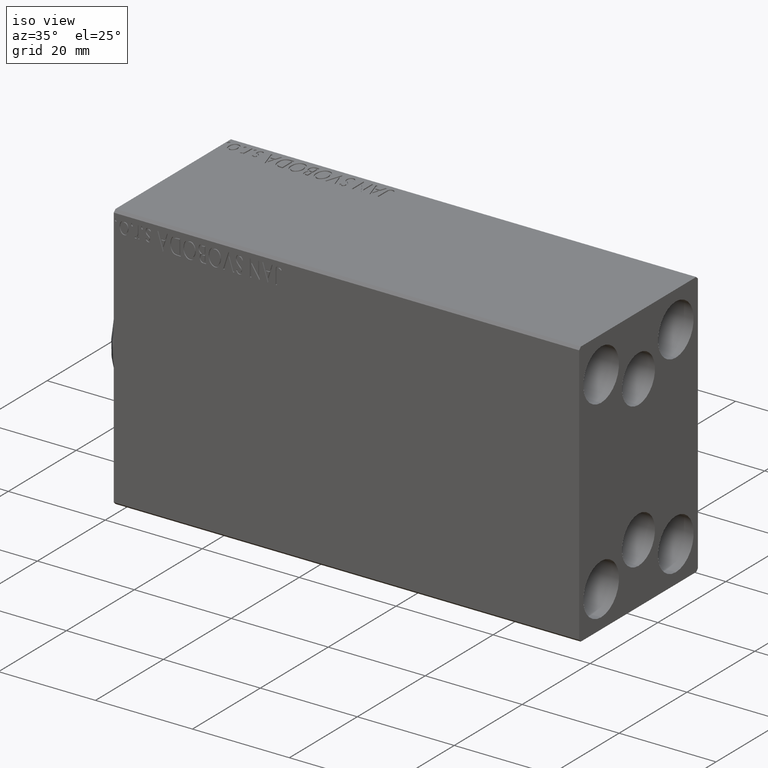
[diagram: clean part render]
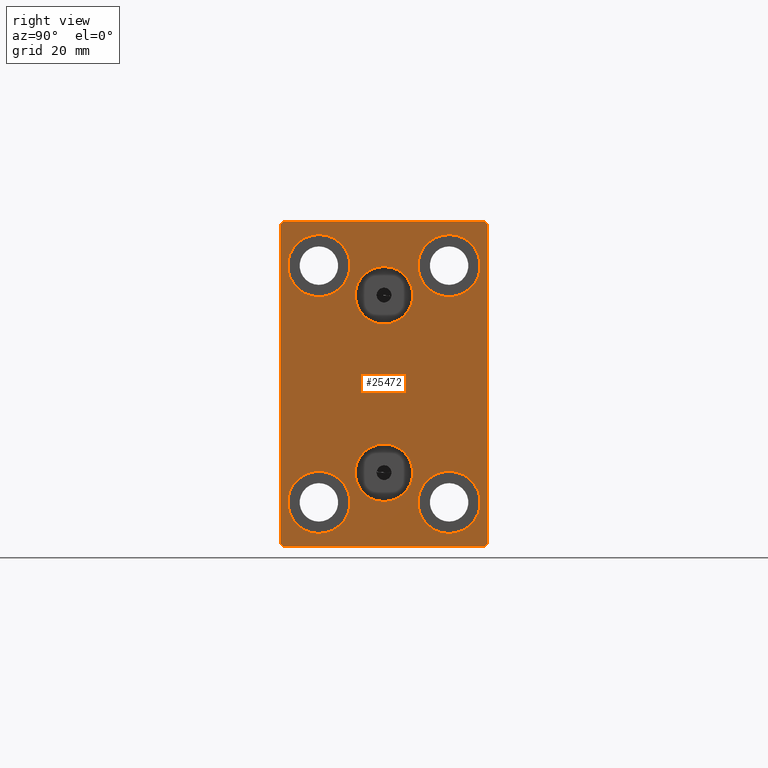
[diagram: tour spotlight — one face highlighted and labeled with its STEP entity id]
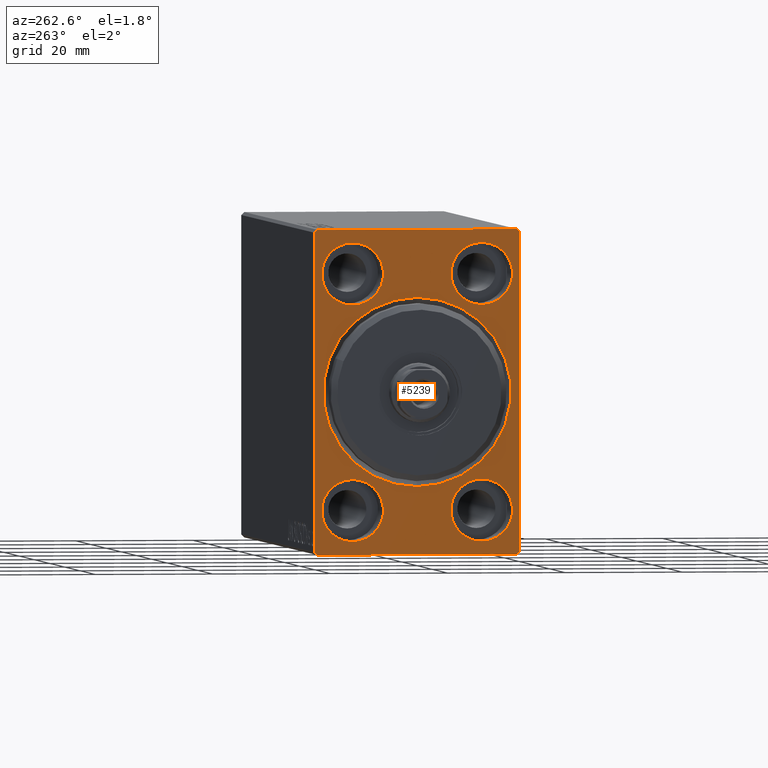
[diagram: tour spotlight — one face highlighted and labeled with its STEP entity id]
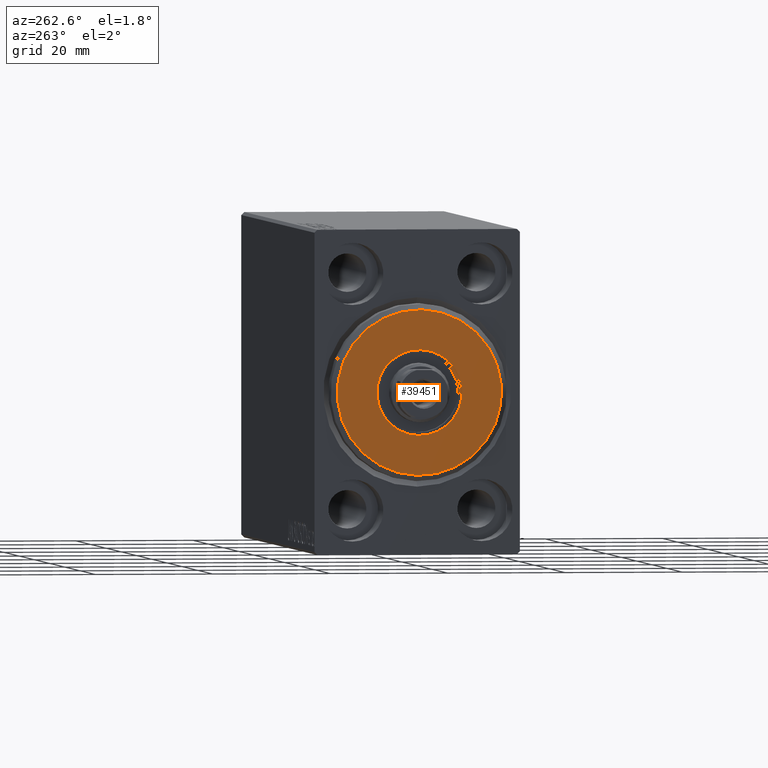
[diagram: tour spotlight — one face highlighted and labeled with its STEP entity id]
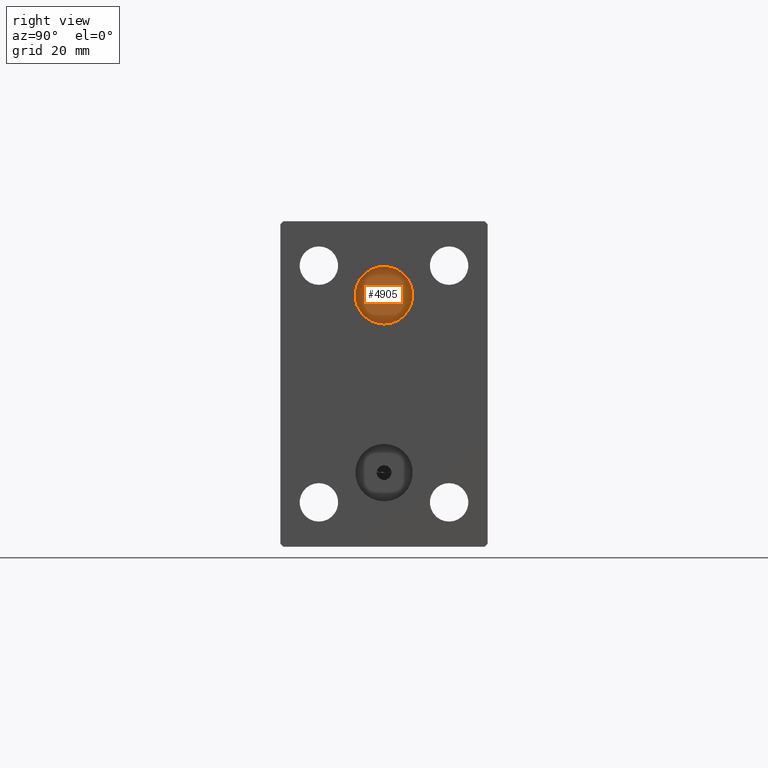
[diagram: tour spotlight — one face highlighted and labeled with its STEP entity id]
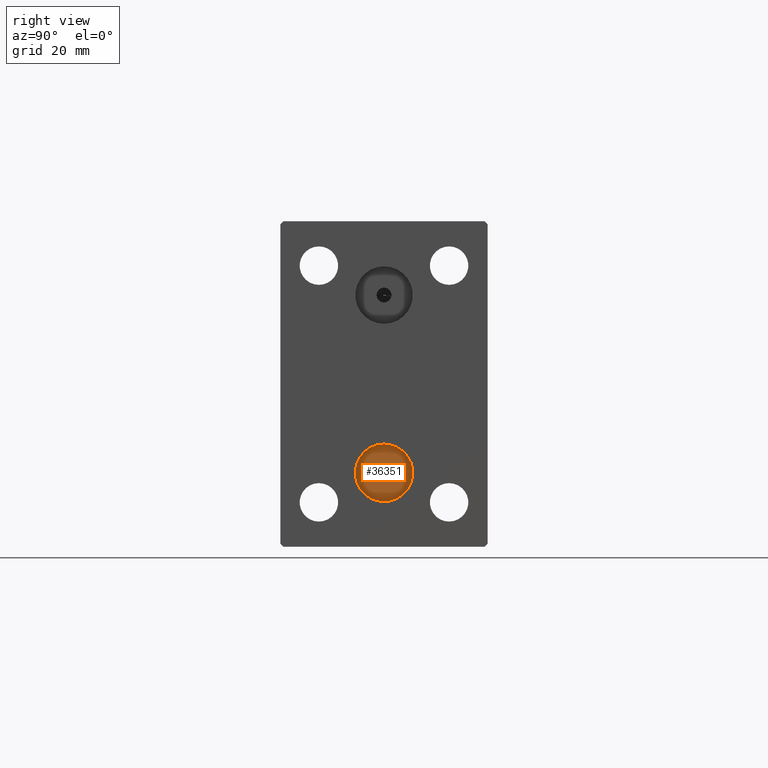
[diagram: tour spotlight — one face highlighted and labeled with its STEP entity id]
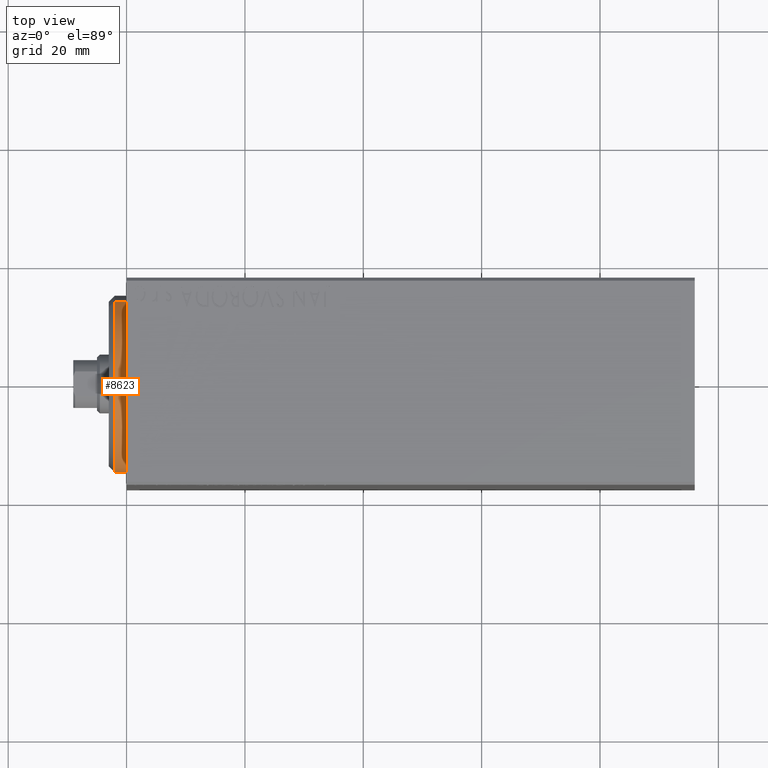
[diagram: tour spotlight — one face highlighted and labeled with its STEP entity id]
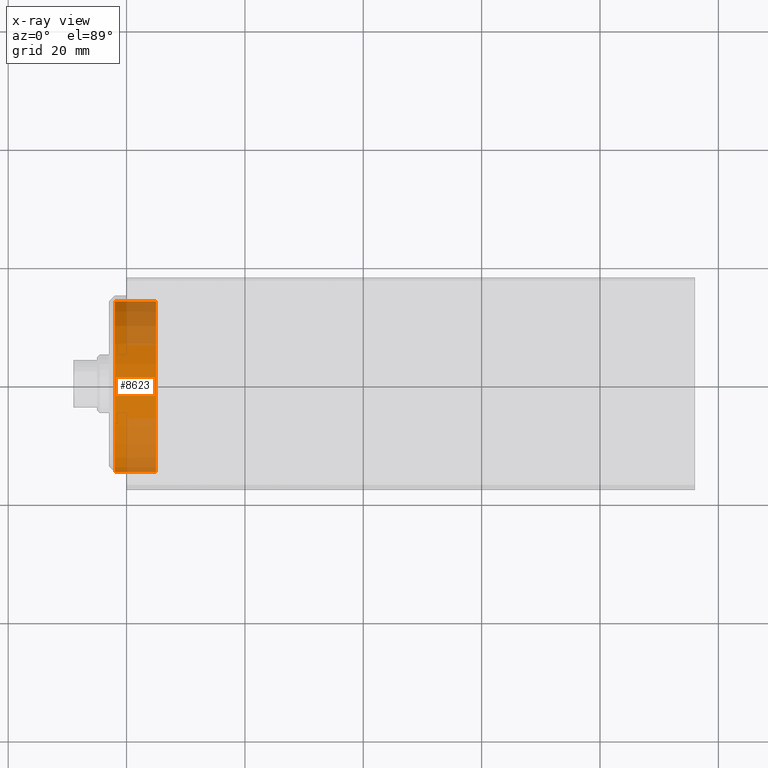
[diagram: x-ray of the same camera — body ghosted, this tour face saturated]
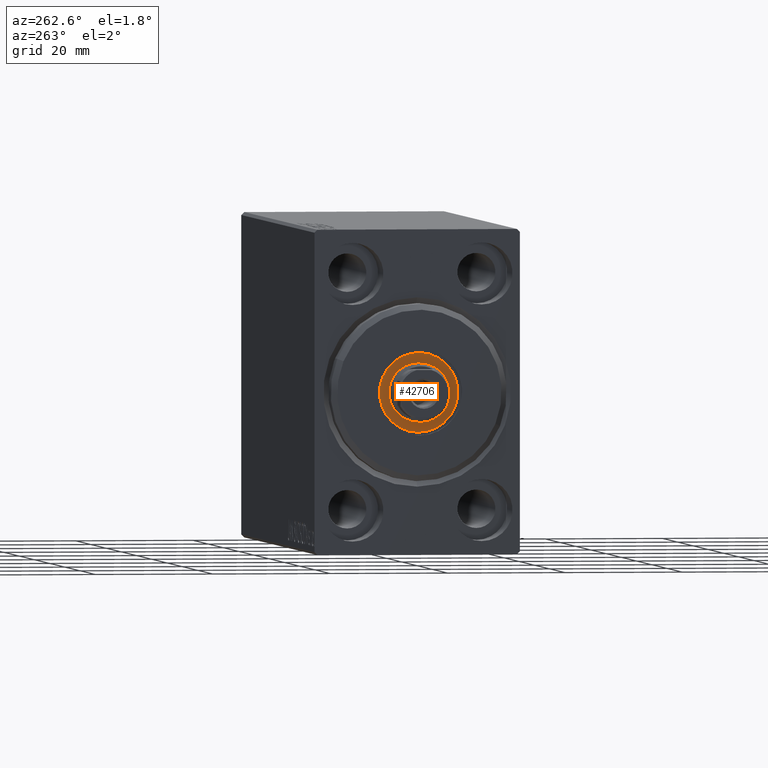
[diagram: tour spotlight — one face highlighted and labeled with its STEP entity id]
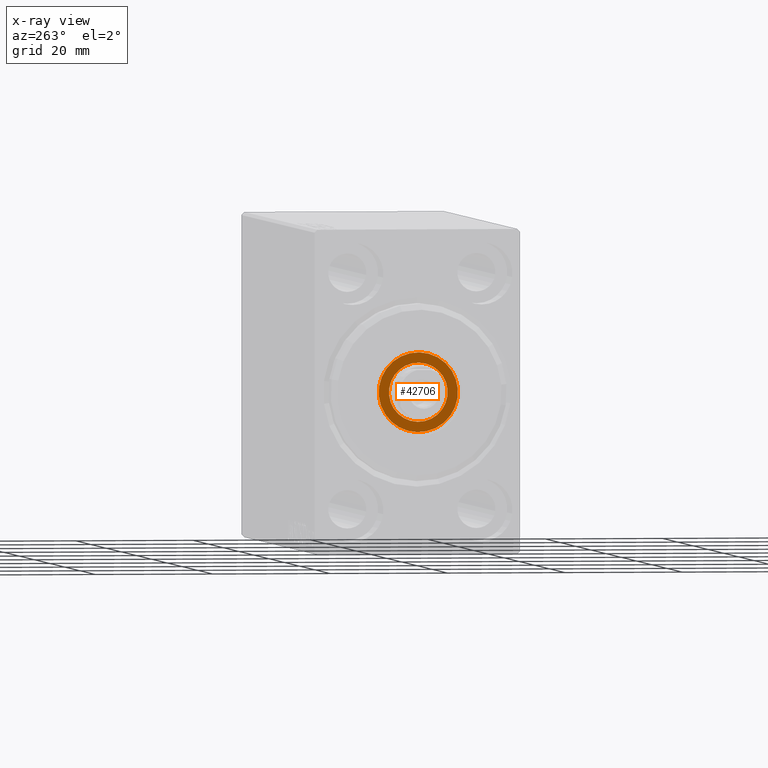
[diagram: x-ray of the same camera — body ghosted, this tour face saturated]
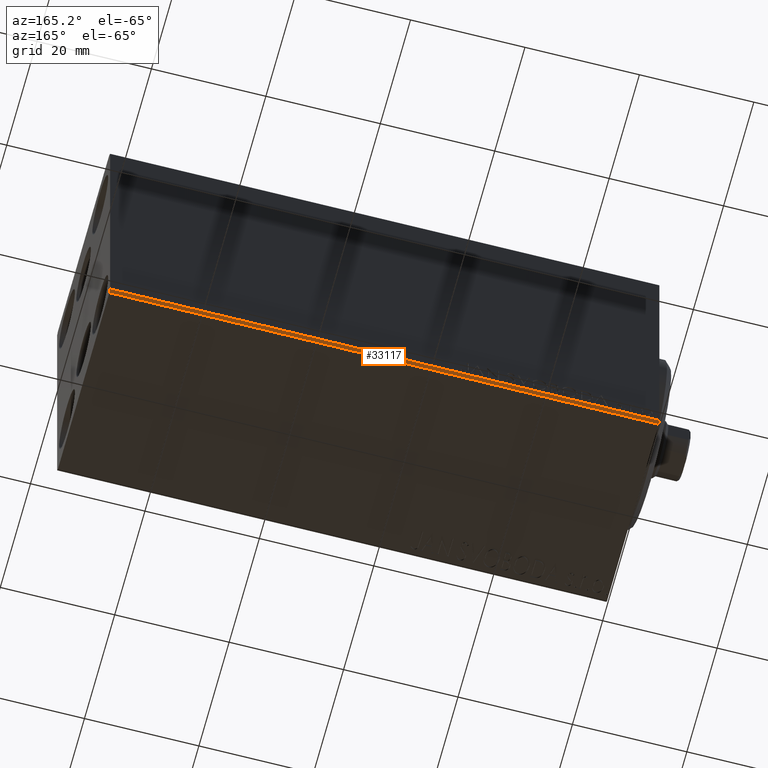
[diagram: tour spotlight — one face highlighted and labeled with its STEP entity id]
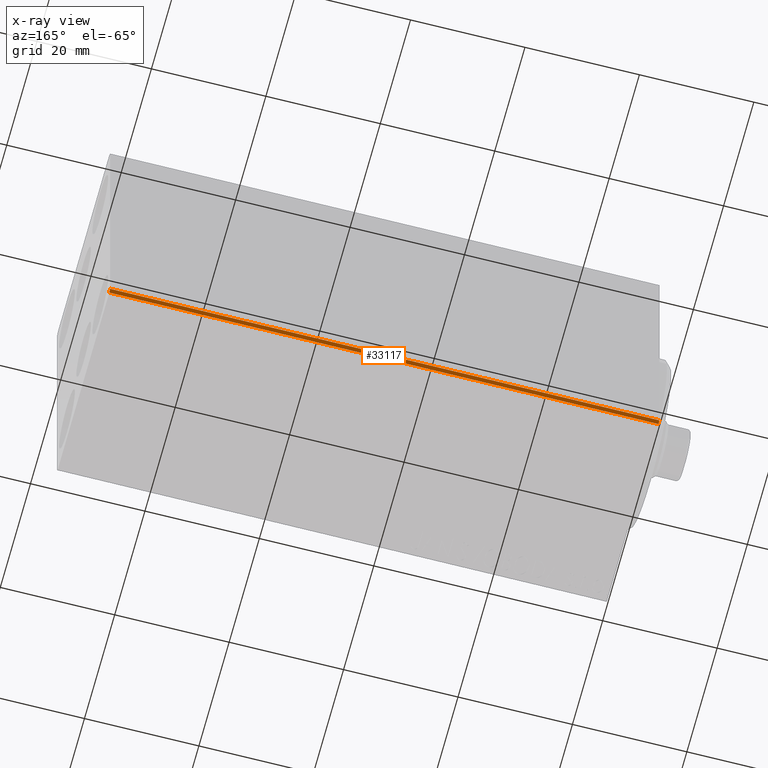
[diagram: x-ray of the same camera — body ghosted, this tour face saturated]
A machine part: a face-by-face anatomy tour. The part has 861 B-rep faces; the first image is the clean iso view, then the 8 largest visible faces are spotlighted one at a time (largest first), each with its STEP entity span.

Face 1 — right view, entity #25472. In plain terms, the highlighted planar face has unit normal (1, 0, 0).
Definition (entity closure, byte-faithful):
#84 = CARTESIAN_POINT ( 'NONE',  ( 96.00000000000000000, -22.24999999999999645, 22.24999999999999645 ) ) ;
#402 = ORIENTED_EDGE ( 'NONE', *, *, #10501, .T. ) ;
#709 = ORIENTED_EDGE ( 'NONE', *, *, #6322, .T. ) ;
#875 = CIRCLE ( 'NONE', #5853, 5.250000000000000888 ) ;
#1411 = CARTESIAN_POINT ( 'NONE',  ( 96.00000000000000000, -17.50000000000000000, -27.50000000000000355 ) ) ;
#1665 = FACE_BOUND ( 'NONE', #24070, .T. ) ;
#2020 = VERTEX_POINT ( 'NONE', #29053 ) ;
#2092 = DIRECTION ( 'NONE',  ( -1.000000000000000000, -0.000000000000000000, -0.000000000000000000 ) ) ;
#2236 = CIRCLE ( 'NONE', #13555, 5.250000000000000888 ) ;
#2254 = CARTESIAN_POINT ( 'NONE',  ( 96.00000000000000000, -11.00000000000000355, 14.75000000000000000 ) ) ;
#2274 = AXIS2_PLACEMENT_3D ( 'NONE', #15189, #39178, #35616 ) ;
#2281 = VECTOR ( 'NONE', #37781, 1000.000000000000000 ) ;
#2365 = CIRCLE ( 'NONE', #3781, 5.250000000000000888 ) ;
#2887 = EDGE_LOOP ( 'NONE', ( #25003, #33401 ) ) ;
#3184 = DIRECTION ( 'NONE',  ( -1.000000000000000000, -0.000000000000000000, -0.000000000000000000 ) ) ;
#3267 = AXIS2_PLACEMENT_3D ( 'NONE', #9071, #38821, #25477 ) ;
#3392 = CARTESIAN_POINT ( 'NONE',  ( 96.00000000000000000, -11.00000000000000355, -20.00000000000000000 ) ) ;
#3693 = CARTESIAN_POINT ( 'NONE',  ( 96.00000000000000000, 11.00000000000000355, 20.00000000000000000 ) ) ;
#3727 = ORIENTED_EDGE ( 'NONE', *, *, #15320, .T. ) ;
#3781 = AXIS2_PLACEMENT_3D ( 'NONE', #32740, #9204, #40495 ) ;
#3829 = EDGE_LOOP ( 'NONE', ( #402, #6989 ) ) ;
#4480 = EDGE_CURVE ( 'NONE', #2020, #28873, #30587, .T. ) ;
#4515 = AXIS2_PLACEMENT_3D ( 'NONE', #30095, #10115, #23014 ) ;
#4530 = DIRECTION ( 'NONE',  ( 0.000000000000000000, 1.000000000000000000, 0.000000000000000000 ) ) ;
#4576 = CIRCLE ( 'NONE', #35049, 4.859999999999999432 ) ;
#4580 = CARTESIAN_POINT ( 'NONE',  ( 96.00000000000000000, -1.836970198721029589E-15, 10.14000000000000057 ) ) ;
#4658 = VERTEX_POINT ( 'NONE', #6428 ) ;
#4995 = FACE_BOUND ( 'NONE', #42869, .T. ) ;
#5586 = EDGE_CURVE ( 'NONE', #28874, #34403, #34888, .T. ) ;
#5636 = LINE ( 'NONE', #19818, #18584 ) ;
#5853 = AXIS2_PLACEMENT_3D ( 'NONE', #36718, #6313, #36936 ) ;
#6313 = DIRECTION ( 'NONE',  ( -1.000000000000000000, -0.000000000000000000, -0.000000000000000000 ) ) ;
#6322 = EDGE_CURVE ( 'NONE', #26762, #40962, #13621, .T. ) ;
#6428 = CARTESIAN_POINT ( 'NONE',  ( 96.00000000000000000, -1.241791854335416311E-15, 19.85999999999999943 ) ) ;
#6592 = ORIENTED_EDGE ( 'NONE', *, *, #26366, .T. ) ;
#6697 = CARTESIAN_POINT ( 'NONE',  ( 96.00000000000000000, -1.734723475976807094E-15, -15.00000000000000000 ) ) ;
#6759 = DIRECTION ( 'NONE',  ( 0.000000000000000000, 0.000000000000000000, 1.000000000000000000 ) ) ;
#6989 = ORIENTED_EDGE ( 'NONE', *, *, #29640, .T. ) ;
#7288 = ORIENTED_EDGE ( 'NONE', *, *, #25210, .T. ) ;
#8936 = CARTESIAN_POINT ( 'NONE',  ( 96.00000000000000000, -1.734723475976807094E-15, -19.85999999999999943 ) ) ;
#9071 = CARTESIAN_POINT ( 'NONE',  ( 96.00000000000000000, -1.836970198721029589E-15, 15.00000000000000000 ) ) ;
#9136 = ORIENTED_EDGE ( 'NONE', *, *, #26611, .T. ) ;
#9204 = DIRECTION ( 'NONE',  ( -1.000000000000000000, -0.000000000000000000, -0.000000000000000000 ) ) ;
#9215 = ORIENTED_EDGE ( 'NONE', *, *, #25128, .T. ) ;
#9296 = ORIENTED_EDGE ( 'NONE', *, *, #24741, .T. ) ;
#9562 = DIRECTION ( 'NONE',  ( 0.000000000000000000, 0.000000000000000000, 1.000000000000000000 ) ) ;
#9646 = CIRCLE ( 'NONE', #3267, 4.859999999999999432 ) ;
#10115 = DIRECTION ( 'NONE',  ( -1.000000000000000000, -0.000000000000000000, -0.000000000000000000 ) ) ;
#10501 = EDGE_CURVE ( 'NONE', #36475, #29584, #23272, .T. ) ;
#10782 = VECTOR ( 'NONE', #34564, 1000.000000000000114 ) ;
#10894 = CARTESIAN_POINT ( 'NONE',  ( 96.00000000000000000, 11.00000000000000355, -14.75000000000000000 ) ) ;
#10907 = VERTEX_POINT ( 'NONE', #21377 ) ;
#11077 = CARTESIAN_POINT ( 'NONE',  ( 96.00000000000000000, -17.50000000000000000, -27.00000000000000355 ) ) ;
#11853 = PLANE ( 'NONE',  #2274 ) ;
#12753 = LINE ( 'NONE', #40284, #26334 ) ;
#12848 = AXIS2_PLACEMENT_3D ( 'NONE', #6697, #27090, #20879 ) ;
#13249 = EDGE_CURVE ( 'NONE', #23604, #4658, #23333, .T. ) ;
#13294 = DIRECTION ( 'NONE',  ( 0.000000000000000000, -1.261617073437677752E-16, 1.000000000000000000 ) ) ;
#13397 = VERTEX_POINT ( 'NONE', #39090 ) ;
#13555 = AXIS2_PLACEMENT_3D ( 'NONE', #23615, #37166, #6759 ) ;
#13621 = CIRCLE ( 'NONE', #29224, 5.250000000000000888 ) ;
#13736 = ORIENTED_EDGE ( 'NONE', *, *, #26660, .T. ) ;
#13915 = ORIENTED_EDGE ( 'NONE', *, *, #31317, .T. ) ;
#14069 = CARTESIAN_POINT ( 'NONE',  ( 96.00000000000000000, 17.50000000000000711, -26.99999999999998934 ) ) ;
#15189 = CARTESIAN_POINT ( 'NONE',  ( 96.00000000000000000, 0.000000000000000000, 0.000000000000000000 ) ) ;
#15320 = EDGE_CURVE ( 'NONE', #30464, #20787, #41805, .T. ) ;
#16529 = EDGE_LOOP ( 'NONE', ( #34128, #34720 ) ) ;
#16982 = CARTESIAN_POINT ( 'NONE',  ( 96.00000000000000000, -1.836970198721029589E-15, 15.00000000000000000 ) ) ;
#18058 = VERTEX_POINT ( 'NONE', #25956 ) ;
#18294 = FACE_BOUND ( 'NONE', #16529, .T. ) ;
#18584 = VECTOR ( 'NONE', #19601, 1000.000000000000000 ) ;
#19008 = DIRECTION ( 'NONE',  ( -0.000000000000000000, 0.7071067811865378028, -0.7071067811865573427 ) ) ;
#19082 = AXIS2_PLACEMENT_3D ( 'NONE', #16982, #36985, #20759 ) ;
#19601 = DIRECTION ( 'NONE',  ( 0.000000000000000000, 0.000000000000000000, -1.000000000000000000 ) ) ;
#19751 = CARTESIAN_POINT ( 'NONE',  ( 96.00000000000000000, 11.00000000000000355, 14.75000000000000000 ) ) ;
#19818 = CARTESIAN_POINT ( 'NONE',  ( 96.00000000000000000, -17.50000000000000000, 27.49999999999999645 ) ) ;
#20484 = DIRECTION ( 'NONE',  ( 0.000000000000000000, -0.7071067811865474617, -0.7071067811865474617 ) ) ;
#20545 = DIRECTION ( 'NONE',  ( -1.000000000000000000, -0.000000000000000000, -0.000000000000000000 ) ) ;
#20596 = ORIENTED_EDGE ( 'NONE', *, *, #23611, .T. ) ;
#20759 = DIRECTION ( 'NONE',  ( 0.000000000000000000, 0.000000000000000000, -1.000000000000000000 ) ) ;
#20787 = VERTEX_POINT ( 'NONE', #22110 ) ;
#20879 = DIRECTION ( 'NONE',  ( 0.000000000000000000, 0.000000000000000000, 1.000000000000000000 ) ) ;
#21025 = LINE ( 'NONE', #30575, #10782 ) ;
#21377 = CARTESIAN_POINT ( 'NONE',  ( 96.00000000000000000, -17.50000000000000000, 26.99999999999999645 ) ) ;
#21654 = EDGE_LOOP ( 'NONE', ( #9136, #709 ) ) ;
#22110 = CARTESIAN_POINT ( 'NONE',  ( 96.00000000000000000, 11.00000000000000355, -25.25000000000000000 ) ) ;
#22253 = VECTOR ( 'NONE', #13294, 1000.000000000000000 ) ;
#22254 = ORIENTED_EDGE ( 'NONE', *, *, #37606, .F. ) ;
#22826 = VECTOR ( 'NONE', #19008, 1000.000000000000000 ) ;
#23014 = DIRECTION ( 'NONE',  ( 0.000000000000000000, 0.000000000000000000, 1.000000000000000000 ) ) ;
#23123 = CARTESIAN_POINT ( 'NONE',  ( 96.00000000000000000, 17.00000000000001421, 27.50000000000000355 ) ) ;
#23272 = CIRCLE ( 'NONE', #41021, 5.250000000000000888 ) ;
#23333 = CIRCLE ( 'NONE', #19082, 4.859999999999999432 ) ;
#23604 = VERTEX_POINT ( 'NONE', #4580 ) ;
#23611 = EDGE_CURVE ( 'NONE', #18058, #28874, #12753, .T. ) ;
#23615 = CARTESIAN_POINT ( 'NONE',  ( 96.00000000000000000, -11.00000000000000355, 20.00000000000000000 ) ) ;
#23633 = CIRCLE ( 'NONE', #4515, 5.250000000000000888 ) ;
#23736 = LINE ( 'NONE', #30386, #22253 ) ;
#23775 = EDGE_CURVE ( 'NONE', #42026, #37230, #2236, .T. ) ;
#24070 = EDGE_LOOP ( 'NONE', ( #6592, #3727 ) ) ;
#24306 = CARTESIAN_POINT ( 'NONE',  ( 96.00000000000000000, 11.00000000000000355, -20.00000000000000000 ) ) ;
#24441 = CARTESIAN_POINT ( 'NONE',  ( 96.00000000000000000, 17.50000000000000000, 27.50000000000000355 ) ) ;
#24574 = ORIENTED_EDGE ( 'NONE', *, *, #5586, .T. ) ;
#24730 = FACE_BOUND ( 'NONE', #2887, .T. ) ;
#24741 = EDGE_CURVE ( 'NONE', #10907, #33565, #5636, .T. ) ;
#25003 = ORIENTED_EDGE ( 'NONE', *, *, #34769, .T. ) ;
#25005 = LINE ( 'NONE', #42328, #22826 ) ;
#25128 = EDGE_CURVE ( 'NONE', #13397, #40888, #21025, .T. ) ;
#25210 = EDGE_CURVE ( 'NONE', #33565, #36411, #25005, .T. ) ;
#25472 = ADVANCED_FACE ( 'NONE', ( #18294, #4995, #1665, #24730, #35181, #32068, #38285 ), #11853, .T. ) ;
#25477 = DIRECTION ( 'NONE',  ( 0.000000000000000000, 0.000000000000000000, -1.000000000000000000 ) ) ;
#25956 = CARTESIAN_POINT ( 'NONE',  ( 96.00000000000000000, 17.50000000000000000, 27.00000000000001776 ) ) ;
#26190 = DIRECTION ( 'NONE',  ( 1.000000000000000000, 0.000000000000000000, -0.000000000000000000 ) ) ;
#26334 = VECTOR ( 'NONE', #40074, 1000.000000000000114 ) ;
#26366 = EDGE_CURVE ( 'NONE', #20787, #30464, #34896, .T. ) ;
#26611 = EDGE_CURVE ( 'NONE', #40962, #26762, #875, .T. ) ;
#26660 = EDGE_CURVE ( 'NONE', #34403, #10907, #30473, .T. ) ;
#26762 = VERTEX_POINT ( 'NONE', #35999 ) ;
#27090 = DIRECTION ( 'NONE',  ( 1.000000000000000000, 0.000000000000000000, -0.000000000000000000 ) ) ;
#28252 = LINE ( 'NONE', #1411, #40013 ) ;
#28873 = VERTEX_POINT ( 'NONE', #8936 ) ;
#28874 = VERTEX_POINT ( 'NONE', #23123 ) ;
#29053 = CARTESIAN_POINT ( 'NONE',  ( 96.00000000000000000, -1.139545131591193817E-15, -10.14000000000000057 ) ) ;
#29079 = CARTESIAN_POINT ( 'NONE',  ( 96.00000000000000000, -17.00000000000001421, -27.50000000000000355 ) ) ;
#29169 = EDGE_LOOP ( 'NONE', ( #24574, #13736, #9296, #7288, #13915, #9215, #40677, #20596 ) ) ;
#29224 = AXIS2_PLACEMENT_3D ( 'NONE', #3392, #3184, #40256 ) ;
#29584 = VERTEX_POINT ( 'NONE', #36290 ) ;
#29640 = EDGE_CURVE ( 'NONE', #29584, #36475, #2365, .T. ) ;
#29744 = CARTESIAN_POINT ( 'NONE',  ( 96.00000000000000000, -1.734723475976807094E-15, -15.00000000000000000 ) ) ;
#30095 = CARTESIAN_POINT ( 'NONE',  ( 96.00000000000000000, -11.00000000000000355, 20.00000000000000000 ) ) ;
#30386 = CARTESIAN_POINT ( 'NONE',  ( 96.00000000000000000, 17.50000000000000711, -27.50000000000000355 ) ) ;
#30464 = VERTEX_POINT ( 'NONE', #10894 ) ;
#30473 = LINE ( 'NONE', #84, #35629 ) ;
#30575 = CARTESIAN_POINT ( 'NONE',  ( 96.00000000000000000, 22.24999999999999645, -22.24999999999999645 ) ) ;
#30587 = CIRCLE ( 'NONE', #12848, 4.859999999999999432 ) ;
#31317 = EDGE_CURVE ( 'NONE', #36411, #13397, #28252, .T. ) ;
#31415 = DIRECTION ( 'NONE',  ( -1.000000000000000000, -0.000000000000000000, -0.000000000000000000 ) ) ;
#32068 = FACE_BOUND ( 'NONE', #21654, .T. ) ;
#32081 = AXIS2_PLACEMENT_3D ( 'NONE', #24306, #31415, #37863 ) ;
#32494 = CARTESIAN_POINT ( 'NONE',  ( 96.00000000000000000, 11.00000000000000355, -20.00000000000000000 ) ) ;
#32740 = CARTESIAN_POINT ( 'NONE',  ( 96.00000000000000000, 11.00000000000000355, 20.00000000000000000 ) ) ;
#33112 = ORIENTED_EDGE ( 'NONE', *, *, #4480, .F. ) ;
#33401 = ORIENTED_EDGE ( 'NONE', *, *, #23775, .T. ) ;
#33565 = VERTEX_POINT ( 'NONE', #11077 ) ;
#34090 = DIRECTION ( 'NONE',  ( 0.000000000000000000, 0.000000000000000000, 1.000000000000000000 ) ) ;
#34128 = ORIENTED_EDGE ( 'NONE', *, *, #13249, .F. ) ;
#34403 = VERTEX_POINT ( 'NONE', #39493 ) ;
#34564 = DIRECTION ( 'NONE',  ( -0.000000000000000000, 0.7071067811865474617, 0.7071067811865474617 ) ) ;
#34720 = ORIENTED_EDGE ( 'NONE', *, *, #41642, .F. ) ;
#34769 = EDGE_CURVE ( 'NONE', #37230, #42026, #23633, .T. ) ;
#34888 = LINE ( 'NONE', #24441, #2281 ) ;
#34896 = CIRCLE ( 'NONE', #32081, 5.250000000000000888 ) ;
#35049 = AXIS2_PLACEMENT_3D ( 'NONE', #29744, #26190, #9562 ) ;
#35181 = FACE_BOUND ( 'NONE', #3829, .T. ) ;
#35616 = DIRECTION ( 'NONE',  ( 0.000000000000000000, 0.000000000000000000, -1.000000000000000000 ) ) ;
#35629 = VECTOR ( 'NONE', #20484, 1000.000000000000114 ) ;
#35999 = CARTESIAN_POINT ( 'NONE',  ( 96.00000000000000000, -11.00000000000000355, -14.75000000000000000 ) ) ;
#36033 = DIRECTION ( 'NONE',  ( 0.000000000000000000, 0.000000000000000000, 1.000000000000000000 ) ) ;
#36290 = CARTESIAN_POINT ( 'NONE',  ( 96.00000000000000000, 11.00000000000000355, 25.25000000000000000 ) ) ;
#36411 = VERTEX_POINT ( 'NONE', #29079 ) ;
#36462 = EDGE_CURVE ( 'NONE', #40888, #18058, #23736, .T. ) ;
#36475 = VERTEX_POINT ( 'NONE', #19751 ) ;
#36718 = CARTESIAN_POINT ( 'NONE',  ( 96.00000000000000000, -11.00000000000000355, -20.00000000000000000 ) ) ;
#36936 = DIRECTION ( 'NONE',  ( 0.000000000000000000, 0.000000000000000000, 1.000000000000000000 ) ) ;
#36985 = DIRECTION ( 'NONE',  ( 1.000000000000000000, 0.000000000000000000, 0.000000000000000000 ) ) ;
#37166 = DIRECTION ( 'NONE',  ( -1.000000000000000000, -0.000000000000000000, -0.000000000000000000 ) ) ;
#37230 = VERTEX_POINT ( 'NONE', #2254 ) ;
#37606 = EDGE_CURVE ( 'NONE', #28873, #2020, #4576, .T. ) ;
#37781 = DIRECTION ( 'NONE',  ( 0.000000000000000000, -1.000000000000000000, -1.982541115402065110E-16 ) ) ;
#37863 = DIRECTION ( 'NONE',  ( 0.000000000000000000, 0.000000000000000000, 1.000000000000000000 ) ) ;
#38285 = FACE_OUTER_BOUND ( 'NONE', #29169, .T. ) ;
#38821 = DIRECTION ( 'NONE',  ( 1.000000000000000000, 0.000000000000000000, 0.000000000000000000 ) ) ;
#39090 = CARTESIAN_POINT ( 'NONE',  ( 96.00000000000000000, 16.99999999999999289, -27.50000000000000355 ) ) ;
#39178 = DIRECTION ( 'NONE',  ( 1.000000000000000000, 0.000000000000000000, 0.000000000000000000 ) ) ;
#39493 = CARTESIAN_POINT ( 'NONE',  ( 96.00000000000000000, -17.00000000000000000, 27.49999999999999645 ) ) ;
#40013 = VECTOR ( 'NONE', #4530, 1000.000000000000000 ) ;
#40074 = DIRECTION ( 'NONE',  ( -0.000000000000000000, -0.7071067811865474617, 0.7071067811865474617 ) ) ;
#40256 = DIRECTION ( 'NONE',  ( 0.000000000000000000, 0.000000000000000000, 1.000000000000000000 ) ) ;
#40284 = CARTESIAN_POINT ( 'NONE',  ( 96.00000000000000000, 22.25000000000000711, 22.25000000000000711 ) ) ;
#40495 = DIRECTION ( 'NONE',  ( 0.000000000000000000, 0.000000000000000000, 1.000000000000000000 ) ) ;
#40677 = ORIENTED_EDGE ( 'NONE', *, *, #36462, .T. ) ;
#40888 = VERTEX_POINT ( 'NONE', #14069 ) ;
#40962 = VERTEX_POINT ( 'NONE', #41388 ) ;
#41021 = AXIS2_PLACEMENT_3D ( 'NONE', #3693, #20545, #34090 ) ;
#41125 = CARTESIAN_POINT ( 'NONE',  ( 96.00000000000000000, -11.00000000000000355, 25.25000000000000000 ) ) ;
#41388 = CARTESIAN_POINT ( 'NONE',  ( 96.00000000000000000, -11.00000000000000355, -25.25000000000000000 ) ) ;
#41642 = EDGE_CURVE ( 'NONE', #4658, #23604, #9646, .T. ) ;
#41805 = CIRCLE ( 'NONE', #42507, 5.250000000000000888 ) ;
#42026 = VERTEX_POINT ( 'NONE', #41125 ) ;
#42328 = CARTESIAN_POINT ( 'NONE',  ( 96.00000000000000000, -22.25000000000024869, -22.24999999999963407 ) ) ;
#42507 = AXIS2_PLACEMENT_3D ( 'NONE', #32494, #2092, #36033 ) ;
#42869 = EDGE_LOOP ( 'NONE', ( #22254, #33112 ) ) ;

Face 2 — auxiliary view, entity #5239. In plain terms, the highlighted planar face has unit normal (1, 0, 0).
Definition (entity closure, byte-faithful):
#283 = CARTESIAN_POINT ( 'NONE',  ( 0.000000000000000000, 17.50000000000000711, -27.50000000000000355 ) ) ;
#385 = EDGE_LOOP ( 'NONE', ( #24196, #30663 ) ) ;
#967 = VECTOR ( 'NONE', #41199, 1000.000000000000114 ) ;
#1113 = LINE ( 'NONE', #35508, #26240 ) ;
#1125 = EDGE_CURVE ( 'NONE', #34394, #4201, #1113, .T. ) ;
#1280 = EDGE_CURVE ( 'NONE', #7774, #36463, #34139, .T. ) ;
#1578 = AXIS2_PLACEMENT_3D ( 'NONE', #30402, #37301, #6890 ) ;
#2355 = DIRECTION ( 'NONE',  ( -1.000000000000000000, 0.000000000000000000, 0.000000000000000000 ) ) ;
#2473 = ORIENTED_EDGE ( 'NONE', *, *, #1125, .T. ) ;
#2560 = VERTEX_POINT ( 'NONE', #31065 ) ;
#3121 = DIRECTION ( 'NONE',  ( 0.000000000000000000, 0.000000000000000000, -1.000000000000000000 ) ) ;
#3130 = VERTEX_POINT ( 'NONE', #4114 ) ;
#3804 = CIRCLE ( 'NONE', #42790, 16.00000000000002842 ) ;
#4114 = CARTESIAN_POINT ( 'NONE',  ( 0.000000000000000000, 0.000000000000000000, 16.00000000000002842 ) ) ;
#4201 = VERTEX_POINT ( 'NONE', #39351 ) ;
#4220 = LINE ( 'NONE', #21080, #4262 ) ;
#4262 = VECTOR ( 'NONE', #8213, 1000.000000000000000 ) ;
#4607 = AXIS2_PLACEMENT_3D ( 'NONE', #26636, #9997, #3121 ) ;
#4913 = VERTEX_POINT ( 'NONE', #33601 ) ;
#5239 = ADVANCED_FACE ( 'NONE', ( #43627, #23631, #13413, #13856, #37618, #30733 ), #33839, .F. ) ;
#5281 = CIRCLE ( 'NONE', #12361, 5.250000000000000888 ) ;
#5724 = CIRCLE ( 'NONE', #23424, 5.250000000000000888 ) ;
#6125 = CARTESIAN_POINT ( 'NONE',  ( 0.000000000000000000, -11.00000000000000355, -20.00000000000000000 ) ) ;
#6316 = VERTEX_POINT ( 'NONE', #19820 ) ;
#6594 = EDGE_CURVE ( 'NONE', #11620, #39891, #25677, .T. ) ;
#6884 = EDGE_CURVE ( 'NONE', #23466, #24889, #36337, .T. ) ;
#6890 = DIRECTION ( 'NONE',  ( 0.000000000000000000, 0.000000000000000000, 1.000000000000000000 ) ) ;
#6909 = ORIENTED_EDGE ( 'NONE', *, *, #29378, .T. ) ;
#6988 = EDGE_LOOP ( 'NONE', ( #39105, #30995 ) ) ;
#7154 = CIRCLE ( 'NONE', #11389, 5.250000000000000888 ) ;
#7674 = CARTESIAN_POINT ( 'NONE',  ( 0.000000000000000000, 17.50000000000000711, -26.99999999999998934 ) ) ;
#7774 = VERTEX_POINT ( 'NONE', #20196 ) ;
#7901 = CARTESIAN_POINT ( 'NONE',  ( 0.000000000000000000, 11.00000000000000355, 25.25000000000000000 ) ) ;
#7940 = CARTESIAN_POINT ( 'NONE',  ( 0.000000000000000000, 11.00000000000000355, -20.00000000000000000 ) ) ;
#8213 = DIRECTION ( 'NONE',  ( 0.000000000000000000, 0.000000000000000000, -1.000000000000000000 ) ) ;
#8864 = EDGE_LOOP ( 'NONE', ( #34990, #20107 ) ) ;
#8876 = EDGE_CURVE ( 'NONE', #34394, #20419, #23164, .T. ) ;
#9174 = CARTESIAN_POINT ( 'NONE',  ( 0.000000000000000000, -11.00000000000000355, 25.25000000000000000 ) ) ;
#9203 = VERTEX_POINT ( 'NONE', #13262 ) ;
#9355 = CARTESIAN_POINT ( 'NONE',  ( 0.000000000000000000, 17.00000000000001421, 27.50000000000000355 ) ) ;
#9441 = DIRECTION ( 'NONE',  ( 0.000000000000000000, 0.000000000000000000, 1.000000000000000000 ) ) ;
#9668 = DIRECTION ( 'NONE',  ( -1.000000000000000000, 0.000000000000000000, 0.000000000000000000 ) ) ;
#9997 = DIRECTION ( 'NONE',  ( 1.000000000000000000, 0.000000000000000000, 0.000000000000000000 ) ) ;
#10117 = CIRCLE ( 'NONE', #34929, 5.250000000000000888 ) ;
#10680 = DIRECTION ( 'NONE',  ( -1.000000000000000000, 0.000000000000000000, 0.000000000000000000 ) ) ;
#11317 = VECTOR ( 'NONE', #43574, 1000.000000000000000 ) ;
#11389 = AXIS2_PLACEMENT_3D ( 'NONE', #20066, #19846, #9441 ) ;
#11620 = VERTEX_POINT ( 'NONE', #9174 ) ;
#11688 = CIRCLE ( 'NONE', #4607, 16.00000000000002842 ) ;
#12361 = AXIS2_PLACEMENT_3D ( 'NONE', #34434, #10680, #37546 ) ;
#12397 = DIRECTION ( 'NONE',  ( 1.000000000000000000, 0.000000000000000000, 0.000000000000000000 ) ) ;
#12586 = VECTOR ( 'NONE', #26905, 1000.000000000000000 ) ;
#13204 = CARTESIAN_POINT ( 'NONE',  ( 0.000000000000000000, 0.000000000000000000, 0.000000000000000000 ) ) ;
#13262 = CARTESIAN_POINT ( 'NONE',  ( 0.000000000000000000, -11.00000000000000355, -25.25000000000000000 ) ) ;
#13413 = FACE_BOUND ( 'NONE', #14557, .T. ) ;
#13459 = CARTESIAN_POINT ( 'NONE',  ( 0.000000000000000000, -11.00000000000000355, 14.75000000000000000 ) ) ;
#13784 = ORIENTED_EDGE ( 'NONE', *, *, #15908, .F. ) ;
#13856 = FACE_BOUND ( 'NONE', #8864, .T. ) ;
#14102 = CARTESIAN_POINT ( 'NONE',  ( 0.000000000000000000, 11.00000000000000355, -25.25000000000000000 ) ) ;
#14139 = DIRECTION ( 'NONE',  ( 0.000000000000000000, 0.000000000000000000, 1.000000000000000000 ) ) ;
#14557 = EDGE_LOOP ( 'NONE', ( #33637, #14861 ) ) ;
#14681 = EDGE_CURVE ( 'NONE', #4913, #6316, #33570, .T. ) ;
#14861 = ORIENTED_EDGE ( 'NONE', *, *, #27708, .F. ) ;
#15345 = ORIENTED_EDGE ( 'NONE', *, *, #32151, .T. ) ;
#15758 = AXIS2_PLACEMENT_3D ( 'NONE', #7940, #27905, #14139 ) ;
#15908 = EDGE_CURVE ( 'NONE', #7774, #4201, #4220, .T. ) ;
#16358 = AXIS2_PLACEMENT_3D ( 'NONE', #31876, #2355, #42750 ) ;
#17077 = AXIS2_PLACEMENT_3D ( 'NONE', #36233, #22474, #35796 ) ;
#17220 = EDGE_CURVE ( 'NONE', #38449, #36463, #30366, .T. ) ;
#18591 = VERTEX_POINT ( 'NONE', #7901 ) ;
#19058 = DIRECTION ( 'NONE',  ( 0.000000000000000000, 0.000000000000000000, -1.000000000000000000 ) ) ;
#19435 = VECTOR ( 'NONE', #38930, 1000.000000000000114 ) ;
#19820 = CARTESIAN_POINT ( 'NONE',  ( 0.000000000000000000, 17.50000000000000000, 27.00000000000001776 ) ) ;
#19846 = DIRECTION ( 'NONE',  ( -1.000000000000000000, 0.000000000000000000, 0.000000000000000000 ) ) ;
#19861 = DIRECTION ( 'NONE',  ( 0.000000000000000000, 0.000000000000000000, 1.000000000000000000 ) ) ;
#20066 = CARTESIAN_POINT ( 'NONE',  ( 0.000000000000000000, 11.00000000000000355, 20.00000000000000000 ) ) ;
#20107 = ORIENTED_EDGE ( 'NONE', *, *, #22668, .F. ) ;
#20196 = CARTESIAN_POINT ( 'NONE',  ( 0.000000000000000000, -17.50000000000000000, 26.99999999999999645 ) ) ;
#20419 = VERTEX_POINT ( 'NONE', #23986 ) ;
#20906 = EDGE_CURVE ( 'NONE', #9203, #30980, #35505, .T. ) ;
#20994 = EDGE_CURVE ( 'NONE', #30980, #9203, #5724, .T. ) ;
#21080 = CARTESIAN_POINT ( 'NONE',  ( 0.000000000000000000, -17.50000000000000000, 27.49999999999999645 ) ) ;
#21103 = ORIENTED_EDGE ( 'NONE', *, *, #14681, .F. ) ;
#21362 = ORIENTED_EDGE ( 'NONE', *, *, #38395, .T. ) ;
#22181 = CARTESIAN_POINT ( 'NONE',  ( 0.000000000000000000, -17.00000000000001421, -27.50000000000000355 ) ) ;
#22474 = DIRECTION ( 'NONE',  ( -1.000000000000000000, 0.000000000000000000, 0.000000000000000000 ) ) ;
#22668 = EDGE_CURVE ( 'NONE', #42279, #18591, #36232, .T. ) ;
#23164 = LINE ( 'NONE', #23376, #12586 ) ;
#23280 = DIRECTION ( 'NONE',  ( 0.000000000000000000, -1.000000000000000000, -1.982541115402065110E-16 ) ) ;
#23376 = CARTESIAN_POINT ( 'NONE',  ( 0.000000000000000000, -17.50000000000000000, -27.50000000000000355 ) ) ;
#23424 = AXIS2_PLACEMENT_3D ( 'NONE', #6125, #9668, #19861 ) ;
#23466 = VERTEX_POINT ( 'NONE', #14102 ) ;
#23631 = FACE_BOUND ( 'NONE', #6988, .T. ) ;
#23914 = DIRECTION ( 'NONE',  ( -0.000000000000000000, 0.7071067811865474617, 0.7071067811865474617 ) ) ;
#23986 = CARTESIAN_POINT ( 'NONE',  ( 0.000000000000000000, 16.99999999999999289, -27.50000000000000355 ) ) ;
#24108 = VECTOR ( 'NONE', #23914, 1000.000000000000114 ) ;
#24196 = ORIENTED_EDGE ( 'NONE', *, *, #20994, .F. ) ;
#24889 = VERTEX_POINT ( 'NONE', #43582 ) ;
#25371 = CARTESIAN_POINT ( 'NONE',  ( 0.000000000000000000, 17.00000000000001421, 27.50000000000000355 ) ) ;
#25593 = LINE ( 'NONE', #25371, #19435 ) ;
#25677 = CIRCLE ( 'NONE', #1578, 5.250000000000000888 ) ;
#26240 = VECTOR ( 'NONE', #28399, 1000.000000000000000 ) ;
#26636 = CARTESIAN_POINT ( 'NONE',  ( 0.000000000000000000, 0.000000000000000000, 0.000000000000000000 ) ) ;
#26905 = DIRECTION ( 'NONE',  ( 0.000000000000000000, 1.000000000000000000, 0.000000000000000000 ) ) ;
#27244 = CARTESIAN_POINT ( 'NONE',  ( 0.000000000000000000, -17.50000000000000000, 26.99999999999999645 ) ) ;
#27636 = LINE ( 'NONE', #7674, #967 ) ;
#27708 = EDGE_CURVE ( 'NONE', #39891, #11620, #10117, .T. ) ;
#27905 = DIRECTION ( 'NONE',  ( -1.000000000000000000, 0.000000000000000000, 0.000000000000000000 ) ) ;
#28399 = DIRECTION ( 'NONE',  ( -0.000000000000000000, -0.7071067811865378028, 0.7071067811865573427 ) ) ;
#28955 = EDGE_LOOP ( 'NONE', ( #13784, #30333, #32547, #15345, #21103, #6909, #36565, #2473 ) ) ;
#29264 = CARTESIAN_POINT ( 'NONE',  ( 0.000000000000000000, 0.000000000000000000, 0.000000000000000000 ) ) ;
#29378 = EDGE_CURVE ( 'NONE', #4913, #20419, #27636, .T. ) ;
#30333 = ORIENTED_EDGE ( 'NONE', *, *, #1280, .T. ) ;
#30366 = LINE ( 'NONE', #34370, #42472 ) ;
#30402 = CARTESIAN_POINT ( 'NONE',  ( 0.000000000000000000, -11.00000000000000355, 20.00000000000000000 ) ) ;
#30663 = ORIENTED_EDGE ( 'NONE', *, *, #20906, .F. ) ;
#30733 = FACE_OUTER_BOUND ( 'NONE', #28955, .T. ) ;
#30859 = CARTESIAN_POINT ( 'NONE',  ( 0.000000000000000000, 11.00000000000000355, 14.75000000000000000 ) ) ;
#30980 = VERTEX_POINT ( 'NONE', #40566 ) ;
#30995 = ORIENTED_EDGE ( 'NONE', *, *, #6884, .F. ) ;
#31065 = CARTESIAN_POINT ( 'NONE',  ( 0.000000000000000000, 1.959434878635768681E-15, -16.00000000000002842 ) ) ;
#31569 = EDGE_CURVE ( 'NONE', #24889, #23466, #5281, .T. ) ;
#31876 = CARTESIAN_POINT ( 'NONE',  ( 0.000000000000000000, -11.00000000000000355, -20.00000000000000000 ) ) ;
#32151 = EDGE_CURVE ( 'NONE', #38449, #6316, #25593, .T. ) ;
#32547 = ORIENTED_EDGE ( 'NONE', *, *, #17220, .F. ) ;
#33098 = ORIENTED_EDGE ( 'NONE', *, *, #34421, .T. ) ;
#33570 = LINE ( 'NONE', #283, #11317 ) ;
#33601 = CARTESIAN_POINT ( 'NONE',  ( 0.000000000000000000, 17.50000000000000711, -26.99999999999998934 ) ) ;
#33637 = ORIENTED_EDGE ( 'NONE', *, *, #6594, .F. ) ;
#33839 = PLANE ( 'NONE',  #35576 ) ;
#34139 = LINE ( 'NONE', #27244, #24108 ) ;
#34370 = CARTESIAN_POINT ( 'NONE',  ( 0.000000000000000000, 17.50000000000000000, 27.50000000000000355 ) ) ;
#34394 = VERTEX_POINT ( 'NONE', #22181 ) ;
#34421 = EDGE_CURVE ( 'NONE', #3130, #2560, #3804, .T. ) ;
#34434 = CARTESIAN_POINT ( 'NONE',  ( 0.000000000000000000, 11.00000000000000355, -20.00000000000000000 ) ) ;
#34929 = AXIS2_PLACEMENT_3D ( 'NONE', #42877, #39548, #39116 ) ;
#34990 = ORIENTED_EDGE ( 'NONE', *, *, #43233, .F. ) ;
#35273 = EDGE_LOOP ( 'NONE', ( #33098, #21362 ) ) ;
#35505 = CIRCLE ( 'NONE', #16358, 5.250000000000000888 ) ;
#35508 = CARTESIAN_POINT ( 'NONE',  ( 0.000000000000000000, -17.00000000000001421, -27.50000000000000355 ) ) ;
#35576 = AXIS2_PLACEMENT_3D ( 'NONE', #13204, #36968, #36750 ) ;
#35796 = DIRECTION ( 'NONE',  ( 0.000000000000000000, 0.000000000000000000, 1.000000000000000000 ) ) ;
#36232 = CIRCLE ( 'NONE', #17077, 5.250000000000000888 ) ;
#36233 = CARTESIAN_POINT ( 'NONE',  ( 0.000000000000000000, 11.00000000000000355, 20.00000000000000000 ) ) ;
#36337 = CIRCLE ( 'NONE', #15758, 5.250000000000000888 ) ;
#36463 = VERTEX_POINT ( 'NONE', #39973 ) ;
#36565 = ORIENTED_EDGE ( 'NONE', *, *, #8876, .F. ) ;
#36750 = DIRECTION ( 'NONE',  ( 0.000000000000000000, 0.000000000000000000, -1.000000000000000000 ) ) ;
#36968 = DIRECTION ( 'NONE',  ( 1.000000000000000000, 0.000000000000000000, 0.000000000000000000 ) ) ;
#37301 = DIRECTION ( 'NONE',  ( -1.000000000000000000, 0.000000000000000000, 0.000000000000000000 ) ) ;
#37546 = DIRECTION ( 'NONE',  ( 0.000000000000000000, 0.000000000000000000, 1.000000000000000000 ) ) ;
#37618 = FACE_BOUND ( 'NONE', #385, .T. ) ;
#38395 = EDGE_CURVE ( 'NONE', #2560, #3130, #11688, .T. ) ;
#38449 = VERTEX_POINT ( 'NONE', #9355 ) ;
#38930 = DIRECTION ( 'NONE',  ( -0.000000000000000000, 0.7071067811865474617, -0.7071067811865474617 ) ) ;
#39105 = ORIENTED_EDGE ( 'NONE', *, *, #31569, .F. ) ;
#39116 = DIRECTION ( 'NONE',  ( 0.000000000000000000, 0.000000000000000000, 1.000000000000000000 ) ) ;
#39351 = CARTESIAN_POINT ( 'NONE',  ( 0.000000000000000000, -17.50000000000000000, -27.00000000000000355 ) ) ;
#39548 = DIRECTION ( 'NONE',  ( -1.000000000000000000, 0.000000000000000000, 0.000000000000000000 ) ) ;
#39891 = VERTEX_POINT ( 'NONE', #13459 ) ;
#39973 = CARTESIAN_POINT ( 'NONE',  ( 0.000000000000000000, -17.00000000000000000, 27.49999999999999645 ) ) ;
#40566 = CARTESIAN_POINT ( 'NONE',  ( 0.000000000000000000, -11.00000000000000355, -14.75000000000000000 ) ) ;
#41199 = DIRECTION ( 'NONE',  ( 0.000000000000000000, -0.7071067811865474617, -0.7071067811865474617 ) ) ;
#42279 = VERTEX_POINT ( 'NONE', #30859 ) ;
#42472 = VECTOR ( 'NONE', #23280, 1000.000000000000000 ) ;
#42750 = DIRECTION ( 'NONE',  ( 0.000000000000000000, 0.000000000000000000, 1.000000000000000000 ) ) ;
#42790 = AXIS2_PLACEMENT_3D ( 'NONE', #29264, #12397, #19058 ) ;
#42877 = CARTESIAN_POINT ( 'NONE',  ( 0.000000000000000000, -11.00000000000000355, 20.00000000000000000 ) ) ;
#43233 = EDGE_CURVE ( 'NONE', #18591, #42279, #7154, .T. ) ;
#43574 = DIRECTION ( 'NONE',  ( 0.000000000000000000, -1.261617073437677752E-16, 1.000000000000000000 ) ) ;
#43582 = CARTESIAN_POINT ( 'NONE',  ( 0.000000000000000000, 11.00000000000000355, -14.75000000000000000 ) ) ;
#43627 = FACE_BOUND ( 'NONE', #35273, .T. ) ;

Face 3 — auxiliary view, entity #39451. In plain terms, the highlighted planar face has unit normal (-1, 0, 0).
Definition (entity closure, byte-faithful):
#1538 = CARTESIAN_POINT ( 'NONE',  ( 3.000000000000000000, 0.000000000000000000, 0.000000000000000000 ) ) ;
#1623 = CARTESIAN_POINT ( 'NONE',  ( 3.000000000000000000, 8.878689293818310074E-16, 7.249999999999999112 ) ) ;
#1993 = VERTEX_POINT ( 'NONE', #28631 ) ;
#2917 = CIRCLE ( 'NONE', #39077, 13.99999999999999645 ) ;
#4671 = DIRECTION ( 'NONE',  ( 0.000000000000000000, 0.000000000000000000, -1.000000000000000000 ) ) ;
#8390 = DIRECTION ( 'NONE',  ( 0.000000000000000000, 0.000000000000000000, -1.000000000000000000 ) ) ;
#8831 = CIRCLE ( 'NONE', #30800, 7.249999999999999112 ) ;
#9008 = EDGE_LOOP ( 'NONE', ( #43602, #35169 ) ) ;
#9276 = DIRECTION ( 'NONE',  ( 1.000000000000000000, -0.000000000000000000, 0.000000000000000000 ) ) ;
#12404 = FACE_BOUND ( 'NONE', #26737, .T. ) ;
#14616 = DIRECTION ( 'NONE',  ( 1.000000000000000000, 0.000000000000000000, 0.000000000000000000 ) ) ;
#14800 = DIRECTION ( 'NONE',  ( 1.000000000000000000, 0.000000000000000000, 0.000000000000000000 ) ) ;
#15080 = FACE_OUTER_BOUND ( 'NONE', #9008, .T. ) ;
#16143 = DIRECTION ( 'NONE',  ( 0.000000000000000000, 0.000000000000000000, -1.000000000000000000 ) ) ;
#16508 = CIRCLE ( 'NONE', #38482, 7.249999999999999112 ) ;
#18226 = EDGE_CURVE ( 'NONE', #1993, #40016, #26201, .T. ) ;
#18325 = CARTESIAN_POINT ( 'NONE',  ( 3.000000000000000000, 0.000000000000000000, 13.99999999999999645 ) ) ;
#18805 = CARTESIAN_POINT ( 'NONE',  ( 3.000000000000000000, 0.000000000000000000, 0.000000000000000000 ) ) ;
#24542 = CARTESIAN_POINT ( 'NONE',  ( 3.000000000000000000, 0.000000000000000000, -7.249999999999999112 ) ) ;
#24808 = DIRECTION ( 'NONE',  ( 1.000000000000000000, -0.000000000000000000, 0.000000000000000000 ) ) ;
#25560 = ORIENTED_EDGE ( 'NONE', *, *, #37753, .F. ) ;
#25895 = DIRECTION ( 'NONE',  ( 0.000000000000000000, 0.000000000000000000, -1.000000000000000000 ) ) ;
#26201 = CIRCLE ( 'NONE', #32580, 13.99999999999999645 ) ;
#26702 = VERTEX_POINT ( 'NONE', #1623 ) ;
#26737 = EDGE_LOOP ( 'NONE', ( #42128, #25560 ) ) ;
#28240 = EDGE_CURVE ( 'NONE', #30962, #26702, #16508, .T. ) ;
#28381 = DIRECTION ( 'NONE',  ( 0.000000000000000000, 0.000000000000000000, -1.000000000000000000 ) ) ;
#28627 = PLANE ( 'NONE',  #37964 ) ;
#28631 = CARTESIAN_POINT ( 'NONE',  ( 3.000000000000000000, 1.775737858763662015E-15, -13.99999999999999645 ) ) ;
#30800 = AXIS2_PLACEMENT_3D ( 'NONE', #1538, #14616, #28381 ) ;
#30962 = VERTEX_POINT ( 'NONE', #24542 ) ;
#31700 = CARTESIAN_POINT ( 'NONE',  ( 3.000000000000000000, 0.000000000000000000, 0.000000000000000000 ) ) ;
#32580 = AXIS2_PLACEMENT_3D ( 'NONE', #31700, #24808, #8390 ) ;
#35073 = CARTESIAN_POINT ( 'NONE',  ( 3.000000000000000000, 0.000000000000000000, 0.000000000000000000 ) ) ;
#35169 = ORIENTED_EDGE ( 'NONE', *, *, #18226, .T. ) ;
#35910 = CARTESIAN_POINT ( 'NONE',  ( 3.000000000000000000, 0.000000000000000000, 0.000000000000000000 ) ) ;
#37753 = EDGE_CURVE ( 'NONE', #26702, #30962, #8831, .T. ) ;
#37964 = AXIS2_PLACEMENT_3D ( 'NONE', #35073, #38837, #4671 ) ;
#38482 = AXIS2_PLACEMENT_3D ( 'NONE', #18805, #14800, #25895 ) ;
#38837 = DIRECTION ( 'NONE',  ( 1.000000000000000000, -0.000000000000000000, 0.000000000000000000 ) ) ;
#39077 = AXIS2_PLACEMENT_3D ( 'NONE', #35910, #9276, #16143 ) ;
#39451 = ADVANCED_FACE ( 'NONE', ( #15080, #12404 ), #28627, .T. ) ;
#40016 = VERTEX_POINT ( 'NONE', #18325 ) ;
#42128 = ORIENTED_EDGE ( 'NONE', *, *, #28240, .F. ) ;
#43602 = ORIENTED_EDGE ( 'NONE', *, *, #43755, .T. ) ;
#43755 = EDGE_CURVE ( 'NONE', #40016, #1993, #2917, .T. ) ;

Face 4 — right view, entity #4905. In plain terms, the highlighted planar face has unit normal (1, 0, 0).
Definition (entity closure, byte-faithful):
#2884 = EDGE_CURVE ( 'NONE', #14761, #41675, #31257, .T. ) ;
#4029 = VERTEX_POINT ( 'NONE', #22742 ) ;
#4076 = EDGE_CURVE ( 'NONE', #4029, #42974, #7183, .T. ) ;
#4161 = EDGE_CURVE ( 'NONE', #42974, #4029, #10022, .T. ) ;
#4905 = ADVANCED_FACE ( 'NONE', ( #36942, #16079 ), #16291, .T. ) ;
#5480 = DIRECTION ( 'NONE',  ( 1.000000000000000000, 0.000000000000000000, 0.000000000000000000 ) ) ;
#6402 = AXIS2_PLACEMENT_3D ( 'NONE', #10055, #30459, #24452 ) ;
#6485 = AXIS2_PLACEMENT_3D ( 'NONE', #16727, #40272, #43805 ) ;
#6847 = ORIENTED_EDGE ( 'NONE', *, *, #4076, .F. ) ;
#7183 = CIRCLE ( 'NONE', #6485, 1.249999999999999334 ) ;
#10022 = CIRCLE ( 'NONE', #39800, 1.249999999999999334 ) ;
#10055 = CARTESIAN_POINT ( 'NONE',  ( 86.00000000000000000, -1.836970198721029589E-15, 15.00000000000000000 ) ) ;
#11149 = DIRECTION ( 'NONE',  ( 1.000000000000000000, 0.000000000000000000, 0.000000000000000000 ) ) ;
#12815 = AXIS2_PLACEMENT_3D ( 'NONE', #25887, #5480, #22558 ) ;
#14454 = CARTESIAN_POINT ( 'NONE',  ( 86.00000000000000000, -1.836970198721029589E-15, 10.14000000000000057 ) ) ;
#14761 = VERTEX_POINT ( 'NONE', #14454 ) ;
#16079 = FACE_OUTER_BOUND ( 'NONE', #18812, .T. ) ;
#16291 = PLANE ( 'NONE',  #26308 ) ;
#16727 = CARTESIAN_POINT ( 'NONE',  ( 86.00000000000000000, -1.836970198721029589E-15, 15.00000000000000000 ) ) ;
#18524 = ORIENTED_EDGE ( 'NONE', *, *, #42042, .T. ) ;
#18812 = EDGE_LOOP ( 'NONE', ( #22111, #18524 ) ) ;
#19276 = CARTESIAN_POINT ( 'NONE',  ( 86.00000000000000000, -1.241791854335416311E-15, 19.85999999999999943 ) ) ;
#19750 = EDGE_LOOP ( 'NONE', ( #30188, #6847 ) ) ;
#20333 = CARTESIAN_POINT ( 'NONE',  ( 86.00000000000000000, -1.836970198721029589E-15, 13.75000000000000000 ) ) ;
#21145 = CARTESIAN_POINT ( 'NONE',  ( 86.00000000000000000, -1.836970198721029589E-15, 15.00000000000000000 ) ) ;
#21374 = DIRECTION ( 'NONE',  ( 0.000000000000000000, 0.000000000000000000, -1.000000000000000000 ) ) ;
#22111 = ORIENTED_EDGE ( 'NONE', *, *, #2884, .T. ) ;
#22558 = DIRECTION ( 'NONE',  ( 0.000000000000000000, 0.000000000000000000, -1.000000000000000000 ) ) ;
#22742 = CARTESIAN_POINT ( 'NONE',  ( 86.00000000000000000, -1.683889348827610851E-15, 16.25000000000000000 ) ) ;
#24452 = DIRECTION ( 'NONE',  ( 0.000000000000000000, 0.000000000000000000, -1.000000000000000000 ) ) ;
#25887 = CARTESIAN_POINT ( 'NONE',  ( 86.00000000000000000, -1.836970198721029589E-15, 15.00000000000000000 ) ) ;
#26308 = AXIS2_PLACEMENT_3D ( 'NONE', #29611, #36515, #43391 ) ;
#29611 = CARTESIAN_POINT ( 'NONE',  ( 86.00000000000000000, -1.836970198721029589E-15, 15.00000000000000000 ) ) ;
#30188 = ORIENTED_EDGE ( 'NONE', *, *, #4161, .F. ) ;
#30459 = DIRECTION ( 'NONE',  ( 1.000000000000000000, 0.000000000000000000, 0.000000000000000000 ) ) ;
#31199 = CIRCLE ( 'NONE', #6402, 4.859999999999999432 ) ;
#31257 = CIRCLE ( 'NONE', #12815, 4.859999999999999432 ) ;
#36515 = DIRECTION ( 'NONE',  ( 1.000000000000000000, 0.000000000000000000, 0.000000000000000000 ) ) ;
#36942 = FACE_BOUND ( 'NONE', #19750, .T. ) ;
#39800 = AXIS2_PLACEMENT_3D ( 'NONE', #21145, #11149, #21374 ) ;
#40272 = DIRECTION ( 'NONE',  ( 1.000000000000000000, 0.000000000000000000, 0.000000000000000000 ) ) ;
#41675 = VERTEX_POINT ( 'NONE', #19276 ) ;
#42042 = EDGE_CURVE ( 'NONE', #41675, #14761, #31199, .T. ) ;
#42974 = VERTEX_POINT ( 'NONE', #20333 ) ;
#43391 = DIRECTION ( 'NONE',  ( 0.000000000000000000, 0.000000000000000000, -1.000000000000000000 ) ) ;
#43805 = DIRECTION ( 'NONE',  ( 0.000000000000000000, 0.000000000000000000, -1.000000000000000000 ) ) ;

Face 5 — right view, entity #36351. In plain terms, the highlighted planar face has unit normal (-1, 0, 0).
Definition (entity closure, byte-faithful):
#848 = VERTEX_POINT ( 'NONE', #28677 ) ;
#2017 = ORIENTED_EDGE ( 'NONE', *, *, #8106, .F. ) ;
#4673 = CIRCLE ( 'NONE', #29463, 1.250000000000001110 ) ;
#5675 = DIRECTION ( 'NONE',  ( 1.000000000000000000, 0.000000000000000000, -0.000000000000000000 ) ) ;
#5796 = FACE_BOUND ( 'NONE', #6091, .T. ) ;
#6091 = EDGE_LOOP ( 'NONE', ( #2017, #27908 ) ) ;
#6617 = DIRECTION ( 'NONE',  ( 1.000000000000000000, 0.000000000000000000, 0.000000000000000000 ) ) ;
#7335 = CARTESIAN_POINT ( 'NONE',  ( 86.00000000000000000, -1.139545131591193817E-15, -10.14000000000000057 ) ) ;
#8092 = DIRECTION ( 'NONE',  ( 0.000000000000000000, 0.000000000000000000, -1.000000000000000000 ) ) ;
#8106 = EDGE_CURVE ( 'NONE', #27669, #10411, #23925, .T. ) ;
#9117 = CARTESIAN_POINT ( 'NONE',  ( 86.00000000000000000, -1.734723475976807094E-15, -15.00000000000000000 ) ) ;
#9926 = AXIS2_PLACEMENT_3D ( 'NONE', #32317, #5675, #22987 ) ;
#10411 = VERTEX_POINT ( 'NONE', #43050 ) ;
#15767 = DIRECTION ( 'NONE',  ( -1.000000000000000000, -0.000000000000000000, 0.000000000000000000 ) ) ;
#15990 = VERTEX_POINT ( 'NONE', #7335 ) ;
#16292 = EDGE_CURVE ( 'NONE', #15990, #848, #37593, .T. ) ;
#16829 = AXIS2_PLACEMENT_3D ( 'NONE', #37454, #6617, #20577 ) ;
#17988 = AXIS2_PLACEMENT_3D ( 'NONE', #9117, #15767, #32213 ) ;
#18067 = CARTESIAN_POINT ( 'NONE',  ( 86.00000000000000000, -1.836970198721029589E-15, -15.00000000000000000 ) ) ;
#18155 = DIRECTION ( 'NONE',  ( 0.000000000000000000, 0.000000000000000000, 1.000000000000000000 ) ) ;
#18376 = DIRECTION ( 'NONE',  ( 1.000000000000000000, 0.000000000000000000, -0.000000000000000000 ) ) ;
#20577 = DIRECTION ( 'NONE',  ( 0.000000000000000000, 0.000000000000000000, -1.000000000000000000 ) ) ;
#21519 = AXIS2_PLACEMENT_3D ( 'NONE', #41915, #18376, #18155 ) ;
#21777 = PLANE ( 'NONE',  #17988 ) ;
#22987 = DIRECTION ( 'NONE',  ( 0.000000000000000000, 0.000000000000000000, 1.000000000000000000 ) ) ;
#23925 = CIRCLE ( 'NONE', #16829, 1.250000000000001110 ) ;
#24728 = CARTESIAN_POINT ( 'NONE',  ( 86.00000000000000000, -1.836970198721029589E-15, -16.25000000000000000 ) ) ;
#26257 = ORIENTED_EDGE ( 'NONE', *, *, #16292, .T. ) ;
#27669 = VERTEX_POINT ( 'NONE', #24728 ) ;
#27908 = ORIENTED_EDGE ( 'NONE', *, *, #41042, .F. ) ;
#28677 = CARTESIAN_POINT ( 'NONE',  ( 86.00000000000000000, -1.734723475976807094E-15, -19.85999999999999943 ) ) ;
#29463 = AXIS2_PLACEMENT_3D ( 'NONE', #18067, #31392, #8092 ) ;
#31392 = DIRECTION ( 'NONE',  ( 1.000000000000000000, 0.000000000000000000, 0.000000000000000000 ) ) ;
#32213 = DIRECTION ( 'NONE',  ( 0.000000000000000000, 0.000000000000000000, 1.000000000000000000 ) ) ;
#32317 = CARTESIAN_POINT ( 'NONE',  ( 86.00000000000000000, -1.734723475976807094E-15, -15.00000000000000000 ) ) ;
#32426 = FACE_OUTER_BOUND ( 'NONE', #42856, .T. ) ;
#34864 = EDGE_CURVE ( 'NONE', #848, #15990, #40663, .T. ) ;
#36351 = ADVANCED_FACE ( 'NONE', ( #5796, #32426 ), #21777, .F. ) ;
#37454 = CARTESIAN_POINT ( 'NONE',  ( 86.00000000000000000, -1.836970198721029589E-15, -15.00000000000000000 ) ) ;
#37593 = CIRCLE ( 'NONE', #9926, 4.859999999999999432 ) ;
#40663 = CIRCLE ( 'NONE', #21519, 4.859999999999999432 ) ;
#41042 = EDGE_CURVE ( 'NONE', #10411, #27669, #4673, .T. ) ;
#41915 = CARTESIAN_POINT ( 'NONE',  ( 86.00000000000000000, -1.734723475976807094E-15, -15.00000000000000000 ) ) ;
#42856 = EDGE_LOOP ( 'NONE', ( #43063, #26257 ) ) ;
#43050 = CARTESIAN_POINT ( 'NONE',  ( 86.00000000000000000, -1.683889348827610456E-15, -13.74999999999999822 ) ) ;
#43063 = ORIENTED_EDGE ( 'NONE', *, *, #34864, .T. ) ;

Face 6 — top view, entity #8623. An x-ray twin of the same camera follows (body ghosted, this face saturated) — the face is partly hidden behind the body. In plain terms, the highlighted cylindrical surface (partial cylindrical patch) has radius 15 mm, axis along (1, 0, 0).
Definition (entity closure, byte-faithful):
#443 = EDGE_CURVE ( 'NONE', #27326, #36676, #18737, .T. ) ;
#966 = ORIENTED_EDGE ( 'NONE', *, *, #443, .F. ) ;
#3460 = DIRECTION ( 'NONE',  ( 0.000000000000000000, 0.000000000000000000, -1.000000000000000000 ) ) ;
#3540 = CARTESIAN_POINT ( 'NONE',  ( -5.000000000000000000, 1.836970198721029589E-15, -15.00000000000000000 ) ) ;
#4555 = DIRECTION ( 'NONE',  ( -1.000000000000000000, -0.000000000000000000, -0.000000000000000000 ) ) ;
#4608 = CARTESIAN_POINT ( 'NONE',  ( 1.999999999999995781, 1.836970198721029589E-15, -15.00000000000000000 ) ) ;
#4813 = DIRECTION ( 'NONE',  ( -1.000000000000000000, -0.000000000000000000, -0.000000000000000000 ) ) ;
#6762 = DIRECTION ( 'NONE',  ( -1.000000000000000000, 0.000000000000000000, 0.000000000000000000 ) ) ;
#7080 = VECTOR ( 'NONE', #18954, 1000.000000000000000 ) ;
#8144 = CARTESIAN_POINT ( 'NONE',  ( 3.000000000000000000, 0.000000000000000000, 15.00000000000000000 ) ) ;
#8623 = ADVANCED_FACE ( 'NONE', ( #31621 ), #35179, .T. ) ;
#9487 = CARTESIAN_POINT ( 'NONE',  ( 1.999999999999995781, 0.000000000000000000, 15.00000000000000000 ) ) ;
#9659 = DIRECTION ( 'NONE',  ( 0.000000000000000000, 0.000000000000000000, 1.000000000000000000 ) ) ;
#14228 = EDGE_CURVE ( 'NONE', #22435, #28411, #32327, .T. ) ;
#15654 = ORIENTED_EDGE ( 'NONE', *, *, #14228, .T. ) ;
#16367 = EDGE_CURVE ( 'NONE', #27326, #22435, #17716, .T. ) ;
#17214 = CARTESIAN_POINT ( 'NONE',  ( -5.000000000000000000, 0.000000000000000000, 15.00000000000000000 ) ) ;
#17641 = CARTESIAN_POINT ( 'NONE',  ( 1.999999999999995781, 0.000000000000000000, 0.000000000000000000 ) ) ;
#17716 = CIRCLE ( 'NONE', #40418, 15.00000000000000000 ) ;
#18522 = DIRECTION ( 'NONE',  ( 0.000000000000000000, 0.000000000000000000, 1.000000000000000000 ) ) ;
#18737 = LINE ( 'NONE', #41608, #7080 ) ;
#18954 = DIRECTION ( 'NONE',  ( -1.000000000000000000, -0.000000000000000000, -0.000000000000000000 ) ) ;
#21818 = AXIS2_PLACEMENT_3D ( 'NONE', #31402, #4555, #18522 ) ;
#22435 = VERTEX_POINT ( 'NONE', #9487 ) ;
#23261 = ORIENTED_EDGE ( 'NONE', *, *, #35265, .F. ) ;
#23403 = CARTESIAN_POINT ( 'NONE',  ( -5.000000000000000000, 0.000000000000000000, 0.000000000000000000 ) ) ;
#27326 = VERTEX_POINT ( 'NONE', #4608 ) ;
#28411 = VERTEX_POINT ( 'NONE', #17214 ) ;
#30068 = AXIS2_PLACEMENT_3D ( 'NONE', #23403, #6762, #9659 ) ;
#31402 = CARTESIAN_POINT ( 'NONE',  ( 3.000000000000000000, 0.000000000000000000, 0.000000000000000000 ) ) ;
#31621 = FACE_OUTER_BOUND ( 'NONE', #37620, .T. ) ;
#32327 = LINE ( 'NONE', #8144, #32559 ) ;
#32559 = VECTOR ( 'NONE', #4813, 1000.000000000000000 ) ;
#35179 = CYLINDRICAL_SURFACE ( 'NONE', #21818, 15.00000000000000000 ) ;
#35265 = EDGE_CURVE ( 'NONE', #36676, #28411, #43549, .T. ) ;
#36614 = ORIENTED_EDGE ( 'NONE', *, *, #16367, .T. ) ;
#36676 = VERTEX_POINT ( 'NONE', #3540 ) ;
#37620 = EDGE_LOOP ( 'NONE', ( #966, #36614, #15654, #23261 ) ) ;
#37642 = DIRECTION ( 'NONE',  ( -1.000000000000000000, 0.000000000000000000, 0.000000000000000000 ) ) ;
#40418 = AXIS2_PLACEMENT_3D ( 'NONE', #17641, #37642, #3460 ) ;
#41608 = CARTESIAN_POINT ( 'NONE',  ( 3.000000000000000000, 1.836970198721029589E-15, -15.00000000000000000 ) ) ;
#43549 = CIRCLE ( 'NONE', #30068, 15.00000000000000000 ) ;

Face 7 — auxiliary view, entity #42706. An x-ray twin of the same camera follows (body ghosted, this face saturated) — the face is partly hidden behind the body. In plain terms, the highlighted planar face has unit normal (-1, 0, 0).
Definition (entity closure, byte-faithful):
#263 = CIRCLE ( 'NONE', #24362, 6.750000000000000000 ) ;
#1755 = CIRCLE ( 'NONE', #11655, 5.000000000000000000 ) ;
#2597 = CARTESIAN_POINT ( 'NONE',  ( 1.499999999999999556, 0.000000000000000000, 0.000000000000000000 ) ) ;
#3035 = EDGE_CURVE ( 'NONE', #21563, #16352, #36235, .T. ) ;
#3750 = ORIENTED_EDGE ( 'NONE', *, *, #36656, .F. ) ;
#5290 = DIRECTION ( 'NONE',  ( 1.000000000000000000, 0.000000000000000000, 0.000000000000000000 ) ) ;
#5818 = CARTESIAN_POINT ( 'NONE',  ( 1.499999999999999556, 6.123233995736765296E-16, 5.000000000000000000 ) ) ;
#7071 = FACE_OUTER_BOUND ( 'NONE', #24686, .T. ) ;
#9473 = DIRECTION ( 'NONE',  ( 1.000000000000000000, 0.000000000000000000, 0.000000000000000000 ) ) ;
#10187 = DIRECTION ( 'NONE',  ( 1.000000000000000000, 0.000000000000000000, 0.000000000000000000 ) ) ;
#11655 = AXIS2_PLACEMENT_3D ( 'NONE', #13955, #31497, #40840 ) ;
#12059 = AXIS2_PLACEMENT_3D ( 'NONE', #13283, #10187, #23723 ) ;
#12323 = CARTESIAN_POINT ( 'NONE',  ( 1.500000000000000000, 0.000000000000000000, 6.750000000000000000 ) ) ;
#13283 = CARTESIAN_POINT ( 'NONE',  ( 1.500000000000000000, 0.000000000000000000, 0.000000000000000000 ) ) ;
#13955 = CARTESIAN_POINT ( 'NONE',  ( 1.499999999999999556, 0.000000000000000000, 0.000000000000000000 ) ) ;
#14502 = CIRCLE ( 'NONE', #25154, 5.000000000000000000 ) ;
#15664 = AXIS2_PLACEMENT_3D ( 'NONE', #15901, #23011, #40538 ) ;
#15901 = CARTESIAN_POINT ( 'NONE',  ( 1.500000000000000000, 0.000000000000000000, 0.000000000000000000 ) ) ;
#16352 = VERTEX_POINT ( 'NONE', #12323 ) ;
#16846 = CARTESIAN_POINT ( 'NONE',  ( 1.500000000000000000, 8.266365894244632361E-16, -6.750000000000000000 ) ) ;
#17472 = ORIENTED_EDGE ( 'NONE', *, *, #3035, .T. ) ;
#19849 = EDGE_LOOP ( 'NONE', ( #3750, #34441 ) ) ;
#21563 = VERTEX_POINT ( 'NONE', #16846 ) ;
#21609 = VERTEX_POINT ( 'NONE', #31275 ) ;
#23011 = DIRECTION ( 'NONE',  ( 1.000000000000000000, 0.000000000000000000, 0.000000000000000000 ) ) ;
#23723 = DIRECTION ( 'NONE',  ( 0.000000000000000000, 0.000000000000000000, -1.000000000000000000 ) ) ;
#24362 = AXIS2_PLACEMENT_3D ( 'NONE', #38371, #5290, #39252 ) ;
#24686 = EDGE_LOOP ( 'NONE', ( #40228, #17472 ) ) ;
#25154 = AXIS2_PLACEMENT_3D ( 'NONE', #2597, #9473, #33207 ) ;
#30002 = EDGE_CURVE ( 'NONE', #16352, #21563, #263, .T. ) ;
#30161 = FACE_BOUND ( 'NONE', #19849, .T. ) ;
#31275 = CARTESIAN_POINT ( 'NONE',  ( 1.499999999999999556, 0.000000000000000000, -5.000000000000000000 ) ) ;
#31497 = DIRECTION ( 'NONE',  ( 1.000000000000000000, 0.000000000000000000, 0.000000000000000000 ) ) ;
#33207 = DIRECTION ( 'NONE',  ( 0.000000000000000000, 0.000000000000000000, -1.000000000000000000 ) ) ;
#34441 = ORIENTED_EDGE ( 'NONE', *, *, #38961, .F. ) ;
#36235 = CIRCLE ( 'NONE', #15664, 6.750000000000000000 ) ;
#36656 = EDGE_CURVE ( 'NONE', #21609, #39123, #1755, .T. ) ;
#38371 = CARTESIAN_POINT ( 'NONE',  ( 1.500000000000000000, 0.000000000000000000, 0.000000000000000000 ) ) ;
#38961 = EDGE_CURVE ( 'NONE', #39123, #21609, #14502, .T. ) ;
#39123 = VERTEX_POINT ( 'NONE', #5818 ) ;
#39252 = DIRECTION ( 'NONE',  ( 0.000000000000000000, 0.000000000000000000, -1.000000000000000000 ) ) ;
#40228 = ORIENTED_EDGE ( 'NONE', *, *, #30002, .T. ) ;
#40538 = DIRECTION ( 'NONE',  ( 0.000000000000000000, 0.000000000000000000, -1.000000000000000000 ) ) ;
#40840 = DIRECTION ( 'NONE',  ( 0.000000000000000000, 0.000000000000000000, -1.000000000000000000 ) ) ;
#42706 = ADVANCED_FACE ( 'NONE', ( #30161, #7071 ), #43705, .T. ) ;
#43705 = PLANE ( 'NONE',  #12059 ) ;

Face 8 — auxiliary view, entity #33117. An x-ray twin of the same camera follows (body ghosted, this face saturated) — the face is partly hidden behind the body. In plain terms, the highlighted planar face has unit normal (0, -0.7071, 0.7071).
Definition (entity closure, byte-faithful):
#701 = EDGE_CURVE ( 'NONE', #40888, #4913, #23807, .T. ) ;
#967 = VECTOR ( 'NONE', #41199, 1000.000000000000114 ) ;
#4913 = VERTEX_POINT ( 'NONE', #33601 ) ;
#7674 = CARTESIAN_POINT ( 'NONE',  ( 0.000000000000000000, 17.50000000000000711, -26.99999999999998934 ) ) ;
#10782 = VECTOR ( 'NONE', #34564, 1000.000000000000114 ) ;
#13397 = VERTEX_POINT ( 'NONE', #39090 ) ;
#14069 = CARTESIAN_POINT ( 'NONE',  ( 96.00000000000000000, 17.50000000000000711, -26.99999999999998934 ) ) ;
#14566 = DIRECTION ( 'NONE',  ( 0.000000000000000000, -0.7071067811865475727, 0.7071067811865475727 ) ) ;
#16135 = EDGE_CURVE ( 'NONE', #20419, #13397, #23061, .T. ) ;
#16712 = DIRECTION ( 'NONE',  ( -1.000000000000000000, 0.000000000000000000, 0.000000000000000000 ) ) ;
#18012 = EDGE_LOOP ( 'NONE', ( #27339, #37548, #26214, #22888 ) ) ;
#19874 = VECTOR ( 'NONE', #20158, 1000.000000000000000 ) ;
#20158 = DIRECTION ( 'NONE',  ( 1.000000000000000000, 0.000000000000000000, 0.000000000000000000 ) ) ;
#20419 = VERTEX_POINT ( 'NONE', #23986 ) ;
#21025 = LINE ( 'NONE', #30575, #10782 ) ;
#22743 = VECTOR ( 'NONE', #16712, 1000.000000000000000 ) ;
#22888 = ORIENTED_EDGE ( 'NONE', *, *, #701, .F. ) ;
#23061 = LINE ( 'NONE', #36816, #19874 ) ;
#23807 = LINE ( 'NONE', #37356, #22743 ) ;
#23986 = CARTESIAN_POINT ( 'NONE',  ( 0.000000000000000000, 16.99999999999999289, -27.50000000000000355 ) ) ;
#25128 = EDGE_CURVE ( 'NONE', #13397, #40888, #21025, .T. ) ;
#26214 = ORIENTED_EDGE ( 'NONE', *, *, #29378, .F. ) ;
#27222 = DIRECTION ( 'NONE',  ( -1.000000000000000000, 0.000000000000000000, 0.000000000000000000 ) ) ;
#27339 = ORIENTED_EDGE ( 'NONE', *, *, #25128, .F. ) ;
#27636 = LINE ( 'NONE', #7674, #967 ) ;
#29378 = EDGE_CURVE ( 'NONE', #4913, #20419, #27636, .T. ) ;
#30575 = CARTESIAN_POINT ( 'NONE',  ( 96.00000000000000000, 22.24999999999999645, -22.24999999999999645 ) ) ;
#31000 = PLANE ( 'NONE',  #35786 ) ;
#33117 = ADVANCED_FACE ( 'NONE', ( #38330 ), #31000, .F. ) ;
#33601 = CARTESIAN_POINT ( 'NONE',  ( 0.000000000000000000, 17.50000000000000711, -26.99999999999998934 ) ) ;
#34553 = CARTESIAN_POINT ( 'NONE',  ( 96.00000000000000000, 17.50000000000000711, -26.99999999999998934 ) ) ;
#34564 = DIRECTION ( 'NONE',  ( -0.000000000000000000, 0.7071067811865474617, 0.7071067811865474617 ) ) ;
#35786 = AXIS2_PLACEMENT_3D ( 'NONE', #34553, #14566, #27222 ) ;
#36816 = CARTESIAN_POINT ( 'NONE',  ( 96.00000000000000000, 16.99999999999999289, -27.50000000000000355 ) ) ;
#37356 = CARTESIAN_POINT ( 'NONE',  ( 96.00000000000000000, 17.50000000000000711, -26.99999999999998934 ) ) ;
#37548 = ORIENTED_EDGE ( 'NONE', *, *, #16135, .F. ) ;
#38330 = FACE_OUTER_BOUND ( 'NONE', #18012, .T. ) ;
#39090 = CARTESIAN_POINT ( 'NONE',  ( 96.00000000000000000, 16.99999999999999289, -27.50000000000000355 ) ) ;
#40888 = VERTEX_POINT ( 'NONE', #14069 ) ;
#41199 = DIRECTION ( 'NONE',  ( 0.000000000000000000, -0.7071067811865474617, -0.7071067811865474617 ) ) ;